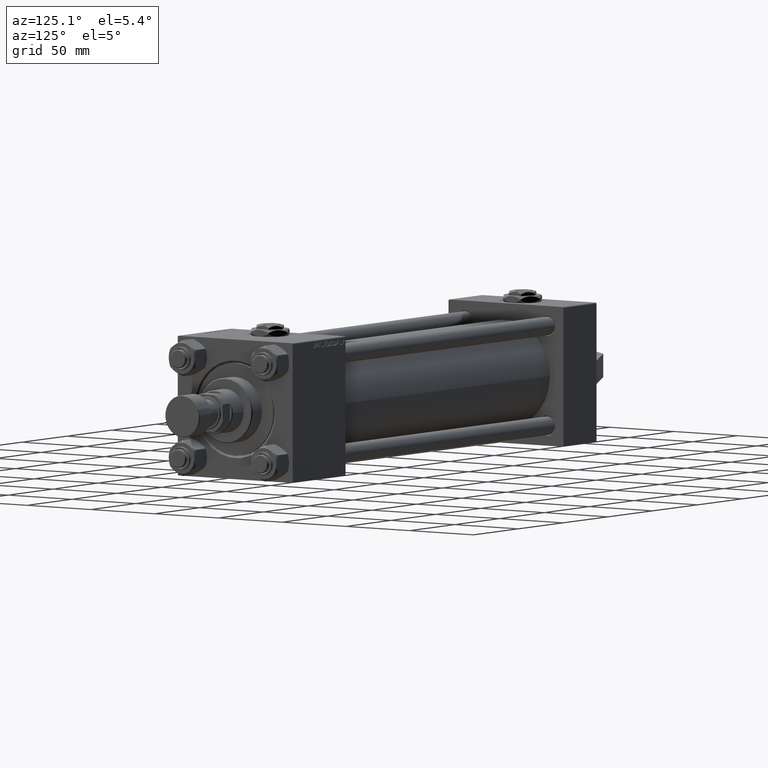
[diagram: clean part render]
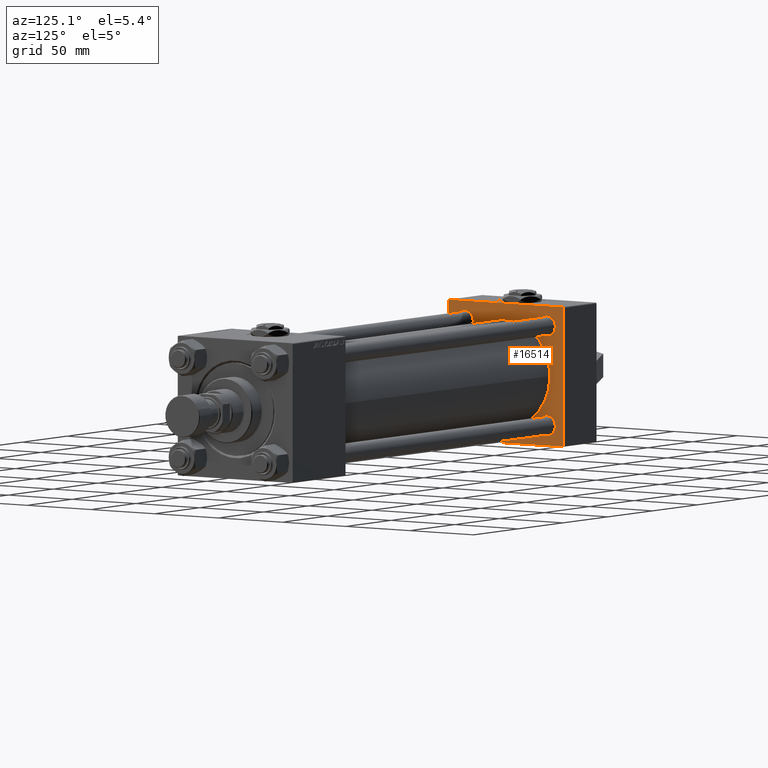
[diagram: same view with one face highlighted and labeled with its STEP entity id]
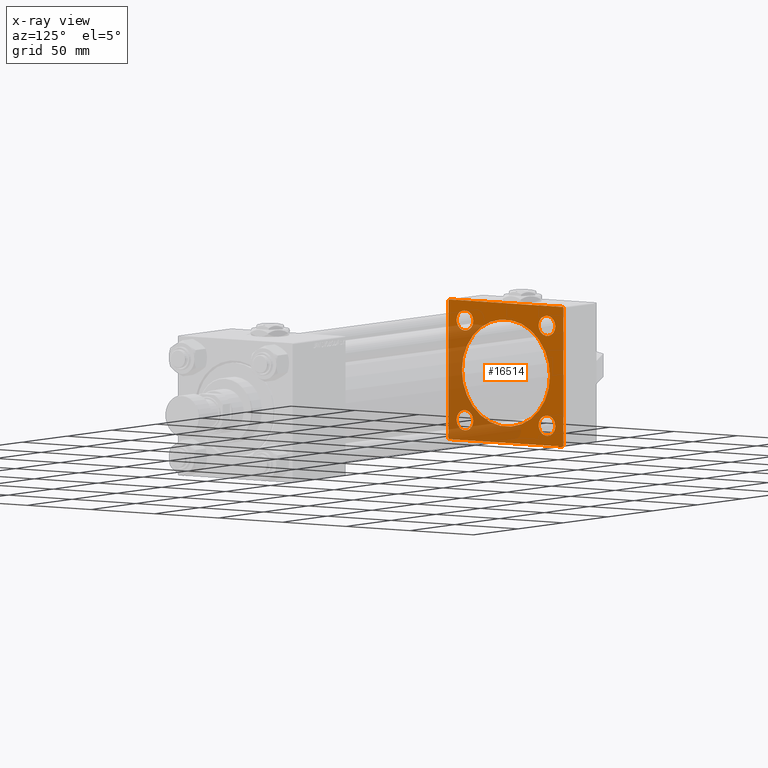
[diagram: x-ray of the same camera — body ghosted, the highlighted face saturated]
A machine part, auxiliary view. The second image highlights one B-rep face of the part: STEP entity #16514.
The next image is the same camera in x-ray: the body ghosted, the highlighted face saturated — about 38% of this face is hidden behind the body in this view.
In plain terms, the highlighted planar face has unit normal (-1, -0, 0).
Its self-contained STEP definition (entity closure, byte-faithful):
#96 = DIRECTION ( 'NONE',  ( 1.000000000000000000, -0.000000000000000000, 0.000000000000000000 ) ) ;
#1653 = DIRECTION ( 'NONE',  ( 0.000000000000000000, -1.000000000000000000, -1.541976423090495387E-16 ) ) ;
#1753 = LINE ( 'NONE', #5907, #24195 ) ;
#1798 = CARTESIAN_POINT ( 'NONE',  ( 37.00000000000000000, -45.00000000000000711, 44.49999999999997158 ) ) ;
#2197 = FACE_BOUND ( 'NONE', #7934, .T. ) ;
#2389 = CARTESIAN_POINT ( 'NONE',  ( 37.00000000000000000, 44.99999999999998579, 44.50000000000001421 ) ) ;
#2477 = CARTESIAN_POINT ( 'NONE',  ( 37.00000000000000711, -2.602085213965210642E-15, 0.000000000000000000 ) ) ;
#2916 = AXIS2_PLACEMENT_3D ( 'NONE', #18765, #96, #15090 ) ;
#3131 = LINE ( 'NONE', #10742, #6264 ) ;
#3557 = EDGE_CURVE ( 'NONE', #28256, #42894, #38917, .T. ) ;
#3895 = EDGE_CURVE ( 'NONE', #28676, #33569, #17061, .T. ) ;
#4015 = LINE ( 'NONE', #38177, #24896 ) ;
#4417 = CIRCLE ( 'NONE', #31913, 6.499999999999936051 ) ;
#4591 = LINE ( 'NONE', #15912, #38545 ) ;
#4633 = DIRECTION ( 'NONE',  ( -1.000000000000000000, 0.000000000000000000, -0.000000000000000000 ) ) ;
#4879 = DIRECTION ( 'NONE',  ( 0.000000000000000000, 0.000000000000000000, 1.000000000000000000 ) ) ;
#4908 = ORIENTED_EDGE ( 'NONE', *, *, #16616, .T. ) ;
#5362 = VERTEX_POINT ( 'NONE', #30643 ) ;
#5401 = CARTESIAN_POINT ( 'NONE',  ( 37.00000000000000000, -44.49999999999995737, 45.00000000000000000 ) ) ;
#5764 = CARTESIAN_POINT ( 'NONE',  ( 37.00000000000000000, -32.14999999999997726, 38.64999999999996305 ) ) ;
#5809 = VECTOR ( 'NONE', #33931, 1000.000000000000000 ) ;
#5863 = ORIENTED_EDGE ( 'NONE', *, *, #3557, .T. ) ;
#5871 = DIRECTION ( 'NONE',  ( -1.000000000000000000, 0.000000000000000000, -0.000000000000000000 ) ) ;
#5907 = CARTESIAN_POINT ( 'NONE',  ( 37.00000000000000000, 44.99999999999998579, -44.99999999999998579 ) ) ;
#6112 = CIRCLE ( 'NONE', #37521, 6.499999999999936051 ) ;
#6264 = VECTOR ( 'NONE', #14202, 1000.000000000000000 ) ;
#6584 = CARTESIAN_POINT ( 'NONE',  ( 37.00000000000000000, 44.49999999999998579, 45.00000000000001421 ) ) ;
#6843 = CIRCLE ( 'NONE', #36704, 34.50000000000000000 ) ;
#7029 = CARTESIAN_POINT ( 'NONE',  ( 37.00000000000000000, 44.99999999999998579, -44.49999999999995737 ) ) ;
#7104 = ORIENTED_EDGE ( 'NONE', *, *, #37702, .T. ) ;
#7638 = EDGE_CURVE ( 'NONE', #39487, #8947, #6843, .T. ) ;
#7672 = DIRECTION ( 'NONE',  ( 0.000000000000000000, 0.000000000000000000, 1.000000000000000000 ) ) ;
#7934 = EDGE_LOOP ( 'NONE', ( #29976, #9479 ) ) ;
#8425 = CARTESIAN_POINT ( 'NONE',  ( 37.00000000000000000, -45.00000000000000711, 44.49999999999997158 ) ) ;
#8947 = VERTEX_POINT ( 'NONE', #36832 ) ;
#9062 = VERTEX_POINT ( 'NONE', #14340 ) ;
#9369 = DIRECTION ( 'NONE',  ( 0.000000000000000000, 0.000000000000000000, 1.000000000000000000 ) ) ;
#9479 = ORIENTED_EDGE ( 'NONE', *, *, #14983, .T. ) ;
#9917 = EDGE_LOOP ( 'NONE', ( #23619, #21788 ) ) ;
#9992 = VECTOR ( 'NONE', #39411, 1000.000000000000114 ) ;
#10159 = EDGE_LOOP ( 'NONE', ( #21594, #28484 ) ) ;
#10742 = CARTESIAN_POINT ( 'NONE',  ( 37.00000000000000000, 44.99999999999998579, 45.00000000000001421 ) ) ;
#11694 = VERTEX_POINT ( 'NONE', #7029 ) ;
#11844 = FACE_BOUND ( 'NONE', #37068, .T. ) ;
#12551 = CARTESIAN_POINT ( 'NONE',  ( 37.00000000000000000, 32.14999999999999147, -32.15000000000000568 ) ) ;
#13373 = EDGE_LOOP ( 'NONE', ( #34646, #35634, #18112, #27208, #41784, #5863, #45284, #19184 ) ) ;
#13466 = EDGE_CURVE ( 'NONE', #33054, #11694, #3131, .T. ) ;
#13991 = DIRECTION ( 'NONE',  ( 0.000000000000000000, 0.000000000000000000, 1.000000000000000000 ) ) ;
#14038 = DIRECTION ( 'NONE',  ( -1.000000000000000000, 0.000000000000000000, -0.000000000000000000 ) ) ;
#14202 = DIRECTION ( 'NONE',  ( 0.000000000000000000, 0.000000000000000000, -1.000000000000000000 ) ) ;
#14269 = DIRECTION ( 'NONE',  ( 0.000000000000000000, 0.000000000000000000, 1.000000000000000000 ) ) ;
#14340 = CARTESIAN_POINT ( 'NONE',  ( 37.00000000000000000, -32.14999999999997726, 25.65000000000006253 ) ) ;
#14352 = CARTESIAN_POINT ( 'NONE',  ( 37.00000000000000000, 32.14999999999999147, -32.15000000000000568 ) ) ;
#14753 = DIRECTION ( 'NONE',  ( 0.000000000000000000, 0.000000000000000000, 1.000000000000000000 ) ) ;
#14927 = AXIS2_PLACEMENT_3D ( 'NONE', #35379, #4633, #4879 ) ;
#14983 = EDGE_CURVE ( 'NONE', #34217, #5362, #36145, .T. ) ;
#15090 = DIRECTION ( 'NONE',  ( 0.000000000000000000, 0.000000000000000000, 1.000000000000000000 ) ) ;
#15315 = VECTOR ( 'NONE', #46924, 1000.000000000000114 ) ;
#15566 = CARTESIAN_POINT ( 'NONE',  ( 37.00000000000000000, -32.14999999999997726, -32.15000000000001279 ) ) ;
#15792 = FACE_BOUND ( 'NONE', #10159, .T. ) ;
#15912 = CARTESIAN_POINT ( 'NONE',  ( 37.00000000000000000, 44.99999999999998579, 45.00000000000001421 ) ) ;
#15995 = DIRECTION ( 'NONE',  ( -1.000000000000000000, 0.000000000000000000, -0.000000000000000000 ) ) ;
#16514 = ADVANCED_FACE ( 'NONE', ( #15792, #2197, #11844, #23389, #16957, #22897 ), #26839, .F. ) ;
#16616 = EDGE_CURVE ( 'NONE', #9062, #32168, #37775, .T. ) ;
#16626 = LINE ( 'NONE', #46103, #31604 ) ;
#16777 = ORIENTED_EDGE ( 'NONE', *, *, #21208, .T. ) ;
#16957 = FACE_BOUND ( 'NONE', #9917, .T. ) ;
#16962 = EDGE_CURVE ( 'NONE', #41906, #28256, #4591, .T. ) ;
#17061 = CIRCLE ( 'NONE', #20973, 6.499999999999922728 ) ;
#18112 = ORIENTED_EDGE ( 'NONE', *, *, #13466, .F. ) ;
#18765 = CARTESIAN_POINT ( 'NONE',  ( 37.00000000000000711, -2.602085213965210642E-15, 0.000000000000000000 ) ) ;
#19184 = ORIENTED_EDGE ( 'NONE', *, *, #22856, .T. ) ;
#19907 = DIRECTION ( 'NONE',  ( -1.000000000000000000, 0.000000000000000000, -0.000000000000000000 ) ) ;
#20649 = CARTESIAN_POINT ( 'NONE',  ( 37.00000000000000000, 32.14999999999999147, -25.65000000000008384 ) ) ;
#20973 = AXIS2_PLACEMENT_3D ( 'NONE', #12551, #19907, #43278 ) ;
#21135 = CARTESIAN_POINT ( 'NONE',  ( 37.00000000000000000, -32.14999999999997726, -38.64999999999994884 ) ) ;
#21208 = EDGE_CURVE ( 'NONE', #32168, #9062, #40199, .T. ) ;
#21457 = VERTEX_POINT ( 'NONE', #40072 ) ;
#21594 = ORIENTED_EDGE ( 'NONE', *, *, #38648, .F. ) ;
#21788 = ORIENTED_EDGE ( 'NONE', *, *, #36231, .T. ) ;
#22856 = EDGE_CURVE ( 'NONE', #21457, #30393, #16626, .T. ) ;
#22897 = FACE_OUTER_BOUND ( 'NONE', #13373, .T. ) ;
#23389 = FACE_BOUND ( 'NONE', #32065, .T. ) ;
#23619 = ORIENTED_EDGE ( 'NONE', *, *, #3895, .T. ) ;
#24195 = VECTOR ( 'NONE', #46731, 1000.000000000000000 ) ;
#24370 = VERTEX_POINT ( 'NONE', #21135 ) ;
#24408 = AXIS2_PLACEMENT_3D ( 'NONE', #43732, #29219, #13991 ) ;
#24896 = VECTOR ( 'NONE', #45551, 1000.000000000000114 ) ;
#26385 = AXIS2_PLACEMENT_3D ( 'NONE', #14352, #29819, #7672 ) ;
#26540 = CARTESIAN_POINT ( 'NONE',  ( 37.00000000000000000, 44.49999999999998579, 45.00000000000001421 ) ) ;
#26550 = LINE ( 'NONE', #29999, #5809 ) ;
#26607 = DIRECTION ( 'NONE',  ( -0.000000000000000000, 0.000000000000000000, 1.000000000000000000 ) ) ;
#26839 = PLANE ( 'NONE',  #40141 ) ;
#26969 = EDGE_CURVE ( 'NONE', #5362, #34217, #44227, .T. ) ;
#27208 = ORIENTED_EDGE ( 'NONE', *, *, #34325, .T. ) ;
#27425 = DIRECTION ( 'NONE',  ( 0.000000000000000000, 0.7071067811865474617, -0.7071067811865474617 ) ) ;
#28045 = EDGE_CURVE ( 'NONE', #42894, #21457, #26550, .T. ) ;
#28256 = VERTEX_POINT ( 'NONE', #5401 ) ;
#28323 = CARTESIAN_POINT ( 'NONE',  ( 37.00000000000000000, 32.14999999999999147, -38.64999999999992752 ) ) ;
#28484 = ORIENTED_EDGE ( 'NONE', *, *, #7638, .F. ) ;
#28676 = VERTEX_POINT ( 'NONE', #28323 ) ;
#29219 = DIRECTION ( 'NONE',  ( -1.000000000000000000, 0.000000000000000000, -0.000000000000000000 ) ) ;
#29819 = DIRECTION ( 'NONE',  ( -1.000000000000000000, 0.000000000000000000, -0.000000000000000000 ) ) ;
#29976 = ORIENTED_EDGE ( 'NONE', *, *, #26969, .T. ) ;
#29999 = CARTESIAN_POINT ( 'NONE',  ( 37.00000000000000000, -45.00000000000000711, 45.00000000000000000 ) ) ;
#30393 = VERTEX_POINT ( 'NONE', #41551 ) ;
#30559 = DIRECTION ( 'NONE',  ( -1.000000000000000000, 0.000000000000000000, -0.000000000000000000 ) ) ;
#30643 = CARTESIAN_POINT ( 'NONE',  ( 37.00000000000000000, 32.14999999999999147, 25.65000000000008384 ) ) ;
#31604 = VECTOR ( 'NONE', #27425, 1000.000000000000114 ) ;
#31913 = AXIS2_PLACEMENT_3D ( 'NONE', #15566, #30559, #34004 ) ;
#32065 = EDGE_LOOP ( 'NONE', ( #32227, #7104 ) ) ;
#32168 = VERTEX_POINT ( 'NONE', #5764 ) ;
#32227 = ORIENTED_EDGE ( 'NONE', *, *, #44066, .T. ) ;
#32472 = DIRECTION ( 'NONE',  ( 1.000000000000000000, -0.000000000000000000, 0.000000000000000000 ) ) ;
#33054 = VERTEX_POINT ( 'NONE', #2389 ) ;
#33569 = VERTEX_POINT ( 'NONE', #20649 ) ;
#33931 = DIRECTION ( 'NONE',  ( 0.000000000000000000, 7.709882115452476934E-17, -1.000000000000000000 ) ) ;
#34004 = DIRECTION ( 'NONE',  ( 0.000000000000000000, 0.000000000000000000, 1.000000000000000000 ) ) ;
#34082 = CARTESIAN_POINT ( 'NONE',  ( 37.00000000000000711, 1.622946243093158675E-15, -34.50000000000000000 ) ) ;
#34187 = CARTESIAN_POINT ( 'NONE',  ( 37.00000000000000000, -32.14999999999997726, 32.15000000000001279 ) ) ;
#34217 = VERTEX_POINT ( 'NONE', #38733 ) ;
#34325 = EDGE_CURVE ( 'NONE', #33054, #41906, #35629, .T. ) ;
#34431 = DIRECTION ( 'NONE',  ( 0.000000000000000000, 0.000000000000000000, 1.000000000000000000 ) ) ;
#34646 = ORIENTED_EDGE ( 'NONE', *, *, #39873, .F. ) ;
#34836 = AXIS2_PLACEMENT_3D ( 'NONE', #37132, #41770, #14753 ) ;
#35379 = CARTESIAN_POINT ( 'NONE',  ( 37.00000000000000000, 32.14999999999999147, 32.15000000000000568 ) ) ;
#35477 = AXIS2_PLACEMENT_3D ( 'NONE', #34187, #15995, #34431 ) ;
#35629 = LINE ( 'NONE', #6584, #15315 ) ;
#35634 = ORIENTED_EDGE ( 'NONE', *, *, #38572, .T. ) ;
#36145 = CIRCLE ( 'NONE', #14927, 6.499999999999922728 ) ;
#36231 = EDGE_CURVE ( 'NONE', #33569, #28676, #47593, .T. ) ;
#36704 = AXIS2_PLACEMENT_3D ( 'NONE', #2477, #32472, #14269 ) ;
#36832 = CARTESIAN_POINT ( 'NONE',  ( 37.00000000000000711, -2.602085213965210642E-15, 34.50000000000000000 ) ) ;
#37068 = EDGE_LOOP ( 'NONE', ( #4908, #16777 ) ) ;
#37132 = CARTESIAN_POINT ( 'NONE',  ( 37.00000000000000000, 32.14999999999999147, 32.15000000000000568 ) ) ;
#37521 = AXIS2_PLACEMENT_3D ( 'NONE', #40098, #14038, #9369 ) ;
#37702 = EDGE_CURVE ( 'NONE', #43726, #24370, #4417, .T. ) ;
#37775 = CIRCLE ( 'NONE', #24408, 6.499999999999950262 ) ;
#38177 = CARTESIAN_POINT ( 'NONE',  ( 37.00000000000000000, 44.99999999999998579, -44.49999999999998579 ) ) ;
#38545 = VECTOR ( 'NONE', #1653, 1000.000000000000000 ) ;
#38572 = EDGE_CURVE ( 'NONE', #47613, #11694, #4015, .T. ) ;
#38648 = EDGE_CURVE ( 'NONE', #8947, #39487, #39042, .T. ) ;
#38733 = CARTESIAN_POINT ( 'NONE',  ( 37.00000000000000000, 32.14999999999999147, 38.64999999999992752 ) ) ;
#38917 = LINE ( 'NONE', #1798, #9992 ) ;
#39042 = CIRCLE ( 'NONE', #2916, 34.50000000000000000 ) ;
#39411 = DIRECTION ( 'NONE',  ( -0.000000000000000000, -0.7071067811865425767, -0.7071067811865524577 ) ) ;
#39487 = VERTEX_POINT ( 'NONE', #34082 ) ;
#39873 = EDGE_CURVE ( 'NONE', #47613, #30393, #1753, .T. ) ;
#40072 = CARTESIAN_POINT ( 'NONE',  ( 37.00000000000000000, -45.00000000000000000, -44.49999999999995737 ) ) ;
#40098 = CARTESIAN_POINT ( 'NONE',  ( 37.00000000000000000, -32.14999999999997726, -32.15000000000001279 ) ) ;
#40141 = AXIS2_PLACEMENT_3D ( 'NONE', #41837, #5871, #26607 ) ;
#40199 = CIRCLE ( 'NONE', #35477, 6.499999999999950262 ) ;
#41551 = CARTESIAN_POINT ( 'NONE',  ( 37.00000000000000000, -44.49999999999995737, -45.00000000000000000 ) ) ;
#41770 = DIRECTION ( 'NONE',  ( -1.000000000000000000, 0.000000000000000000, -0.000000000000000000 ) ) ;
#41784 = ORIENTED_EDGE ( 'NONE', *, *, #16962, .T. ) ;
#41837 = CARTESIAN_POINT ( 'NONE',  ( 37.00000000000000000, 0.000000000000000000, 0.000000000000000000 ) ) ;
#41906 = VERTEX_POINT ( 'NONE', #26540 ) ;
#42894 = VERTEX_POINT ( 'NONE', #8425 ) ;
#43278 = DIRECTION ( 'NONE',  ( 0.000000000000000000, 0.000000000000000000, 1.000000000000000000 ) ) ;
#43600 = CARTESIAN_POINT ( 'NONE',  ( 37.00000000000000000, -32.14999999999997726, -25.65000000000007674 ) ) ;
#43726 = VERTEX_POINT ( 'NONE', #43600 ) ;
#43732 = CARTESIAN_POINT ( 'NONE',  ( 37.00000000000000000, -32.14999999999997726, 32.15000000000001279 ) ) ;
#43809 = CARTESIAN_POINT ( 'NONE',  ( 37.00000000000000000, 44.49999999999998579, -44.99999999999998579 ) ) ;
#44066 = EDGE_CURVE ( 'NONE', #24370, #43726, #6112, .T. ) ;
#44227 = CIRCLE ( 'NONE', #34836, 6.499999999999922728 ) ;
#45284 = ORIENTED_EDGE ( 'NONE', *, *, #28045, .T. ) ;
#45551 = DIRECTION ( 'NONE',  ( -0.000000000000000000, 0.7071067811865474617, 0.7071067811865474617 ) ) ;
#46103 = CARTESIAN_POINT ( 'NONE',  ( 37.00000000000000000, -44.49999999999998579, -45.00000000000000000 ) ) ;
#46731 = DIRECTION ( 'NONE',  ( 0.000000000000000000, -1.000000000000000000, -1.541976423090495633E-16 ) ) ;
#46924 = DIRECTION ( 'NONE',  ( 0.000000000000000000, -0.7071067811865474617, 0.7071067811865474617 ) ) ;
#47593 = CIRCLE ( 'NONE', #26385, 6.499999999999922728 ) ;
#47613 = VERTEX_POINT ( 'NONE', #43809 ) ;